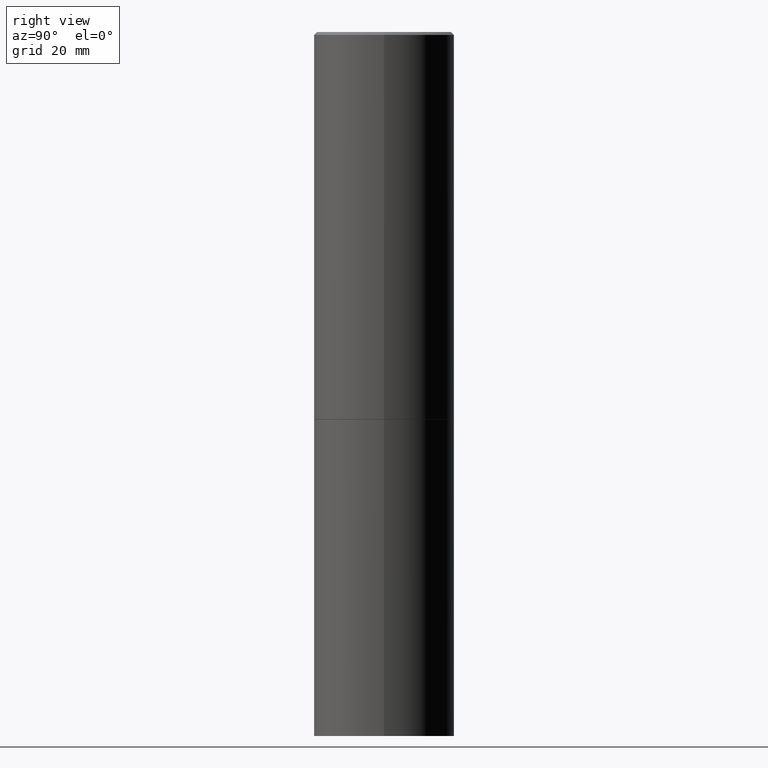
[diagram: clean part render]
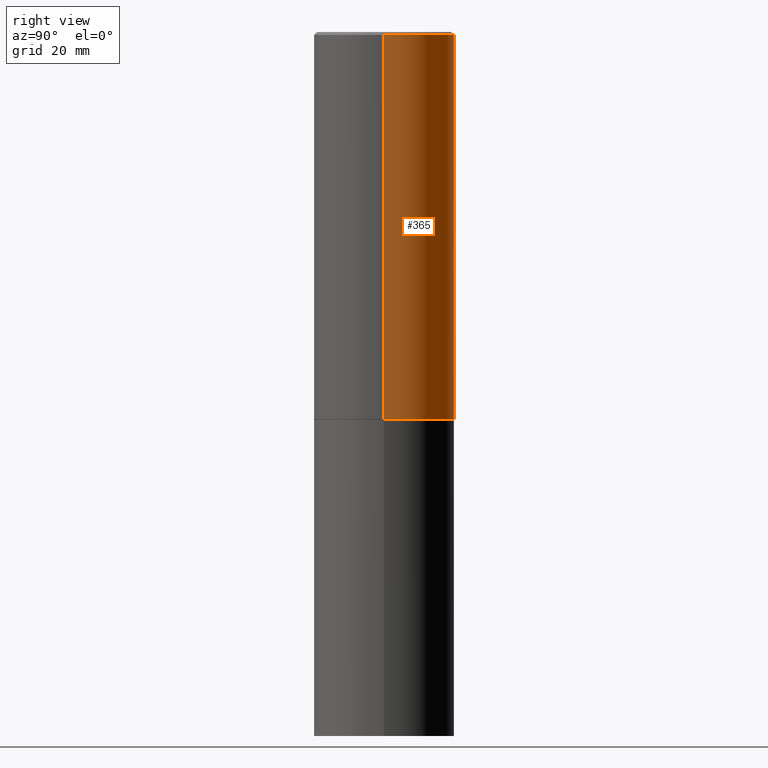
[diagram: same view with one face highlighted and labeled with its STEP entity id]
A machine part, right view. The second image highlights one B-rep face of the part: STEP entity #365.
In plain terms, the highlighted cylindrical surface (partial cylindrical patch) has radius 12.7 mm, axis along (-0, 0, 1).
Its self-contained STEP definition (entity closure, byte-faithful):
#9 = FACE_OUTER_BOUND ( 'NONE', #161, .T. ) ;
#22 = DIRECTION ( 'NONE',  ( -2.445468806185136597E-29, 3.491481338843145583E-15, 1.000000000000000000 ) ) ;
#23 = AXIS2_PLACEMENT_3D ( 'NONE', #158, #22, #223 ) ;
#33 = EDGE_CURVE ( 'NONE', #211, #43, #38, .T. ) ;
#38 = LINE ( 'NONE', #267, #166 ) ;
#43 = VERTEX_POINT ( 'NONE', #301 ) ;
#46 = AXIS2_PLACEMENT_3D ( 'NONE', #101, #220, #79 ) ;
#51 = CARTESIAN_POINT ( 'NONE',  ( -0.5000000000000000000, -1.281242234827833554E-15, -2.749000000000000110 ) ) ;
#60 = CYLINDRICAL_SURFACE ( 'NONE', #143, 0.4999999999999998335 ) ;
#63 = CARTESIAN_POINT ( 'NONE',  ( 0.5000000000000000000, -1.308956353932294179E-14, -2.749000000000000110 ) ) ;
#67 = VECTOR ( 'NONE', #348, 39.37007874015748143 ) ;
#79 = DIRECTION ( 'NONE',  ( 1.000000000000000000, -6.982962677686266711E-15, 0.000000000000000000 ) ) ;
#94 = CARTESIAN_POINT ( 'NONE',  ( 0.000000000000000000, 0.000000000000000000, 0.000000000000000000 ) ) ;
#101 = CARTESIAN_POINT ( 'NONE',  ( 6.722593748202941159E-29, -9.598082200479808430E-15, -2.749000000000000110 ) ) ;
#114 = LINE ( 'NONE', #117, #67 ) ;
#117 = CARTESIAN_POINT ( 'NONE',  ( -0.4999999999999998335, 3.552713678800499746E-15, -2.459467545127452330E-29 ) ) ;
#121 = DIRECTION ( 'NONE',  ( 1.000000000000000000, -6.982962677686267499E-15, 4.876176775795936353E-29 ) ) ;
#135 = CIRCLE ( 'NONE', #23, 0.4999999999999996669 ) ;
#143 = AXIS2_PLACEMENT_3D ( 'NONE', #94, #264, #121 ) ;
#152 = VERTEX_POINT ( 'NONE', #321 ) ;
#158 = CARTESIAN_POINT ( 'NONE',  ( 4.890937612370297681E-31, -6.982962677686324889E-17, -0.02000000000000009756 ) ) ;
#161 = EDGE_LOOP ( 'NONE', ( #209, #184, #302, #187 ) ) ;
#166 = VECTOR ( 'NONE', #178, 39.37007874015748143 ) ;
#178 = DIRECTION ( 'NONE',  ( -2.445468806185136877E-29, 3.491481338843145188E-15, 1.000000000000000000 ) ) ;
#184 = ORIENTED_EDGE ( 'NONE', *, *, #316, .T. ) ;
#187 = ORIENTED_EDGE ( 'NONE', *, *, #33, .F. ) ;
#209 = ORIENTED_EDGE ( 'NONE', *, *, #251, .T. ) ;
#211 = VERTEX_POINT ( 'NONE', #63 ) ;
#220 = DIRECTION ( 'NONE',  ( -2.445468806185136597E-29, 3.491481338843145583E-15, 1.000000000000000000 ) ) ;
#223 = DIRECTION ( 'NONE',  ( 1.000000000000000000, -6.982962677686266711E-15, 0.000000000000000000 ) ) ;
#251 = EDGE_CURVE ( 'NONE', #211, #275, #297, .T. ) ;
#264 = DIRECTION ( 'NONE',  ( -2.445468806185136597E-29, 3.491481338843145583E-15, 1.000000000000000000 ) ) ;
#267 = CARTESIAN_POINT ( 'NONE',  ( 0.4999999999999998335, -3.491481338843132566E-15, 2.438088387897967336E-29 ) ) ;
#275 = VERTEX_POINT ( 'NONE', #51 ) ;
#276 = EDGE_CURVE ( 'NONE', #43, #152, #135, .T. ) ;
#297 = CIRCLE ( 'NONE', #46, 0.5000000000000000000 ) ;
#301 = CARTESIAN_POINT ( 'NONE',  ( 0.4999999999999996669, -3.500078625662626713E-15, -0.02000000000000009756 ) ) ;
#302 = ORIENTED_EDGE ( 'NONE', *, *, #276, .F. ) ;
#316 = EDGE_CURVE ( 'NONE', #275, #152, #114, .T. ) ;
#321 = CARTESIAN_POINT ( 'NONE',  ( -0.4999999999999996669, 3.421651712066267691E-15, -0.02000000000000009756 ) ) ;
#348 = DIRECTION ( 'NONE',  ( -2.445468806185136877E-29, 3.491481338843145188E-15, 1.000000000000000000 ) ) ;
#365 = ADVANCED_FACE ( 'NONE', ( #9 ), #60, .T. ) ;